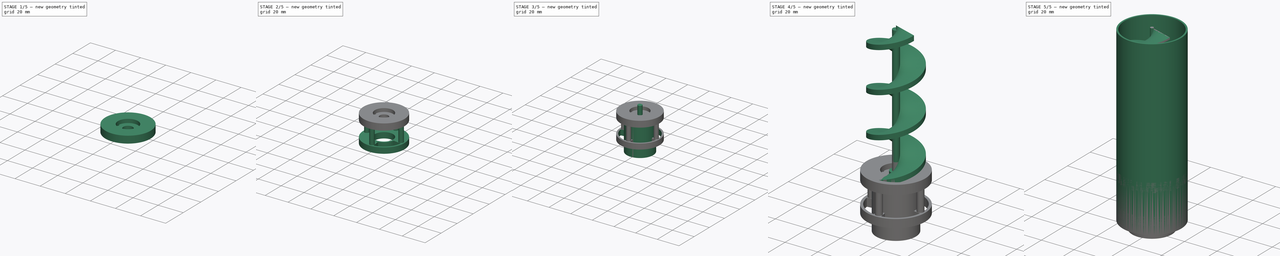
[diagram: build sequence overview — one tinted view per stage of 5, left to right]
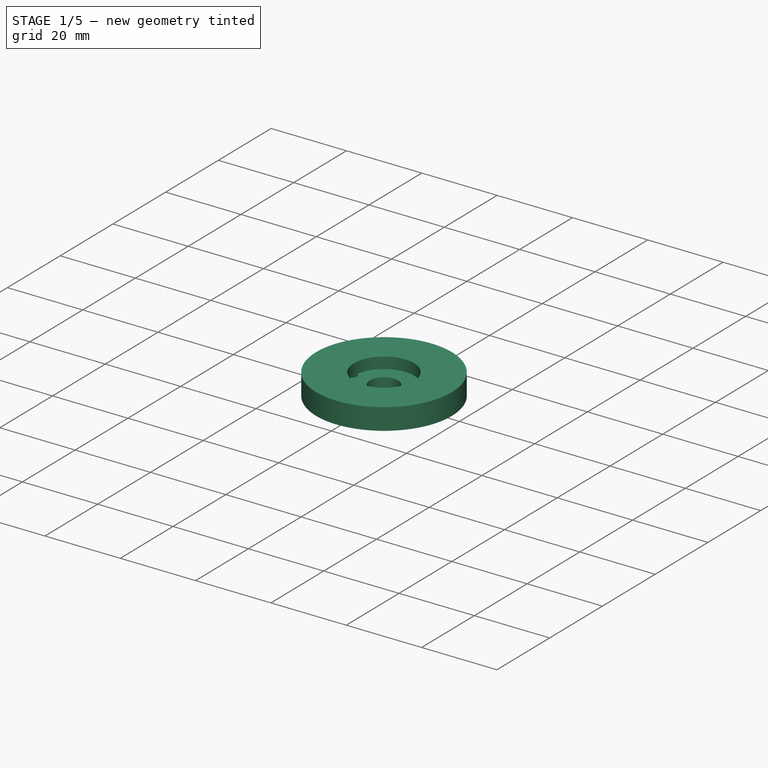
[diagram: stage 1 of 5 — iso view after this stage's code; geometry added in this stage tinted green]
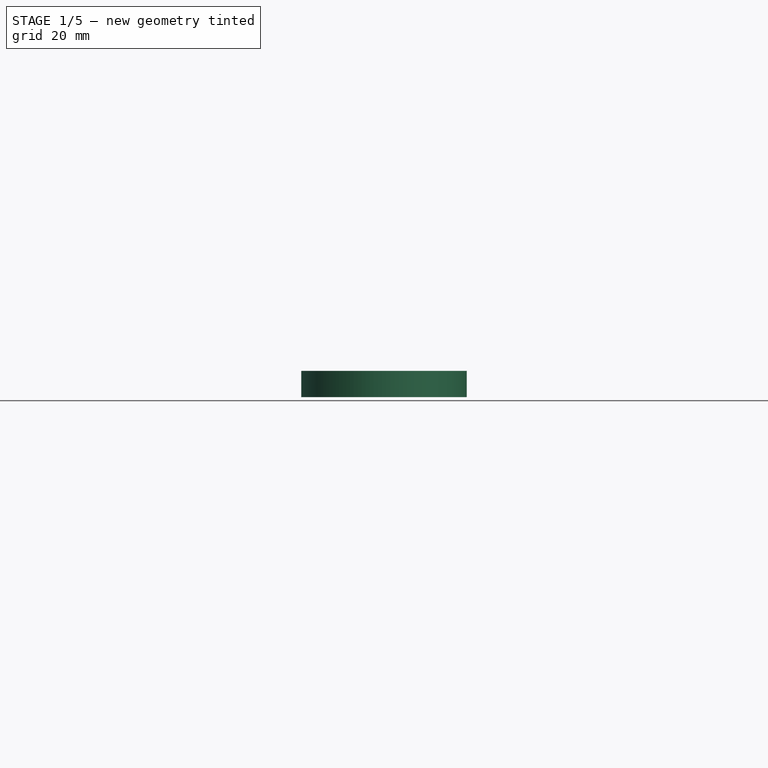
[diagram: stage 1 of 5 — front view after this stage's code; geometry added in this stage tinted green]
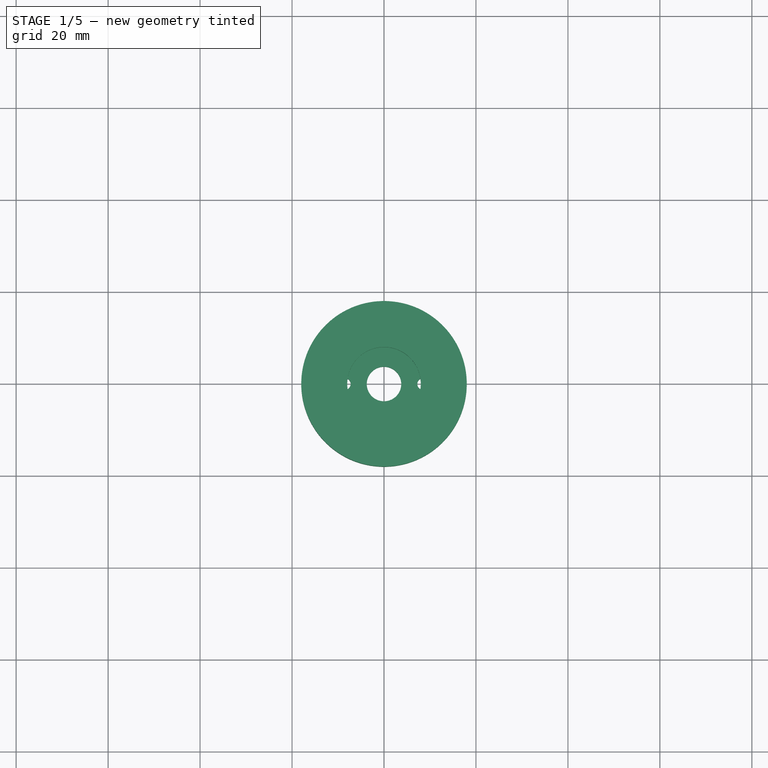
[diagram: stage 1 of 5 — top view after this stage's code; geometry added in this stage tinted green]
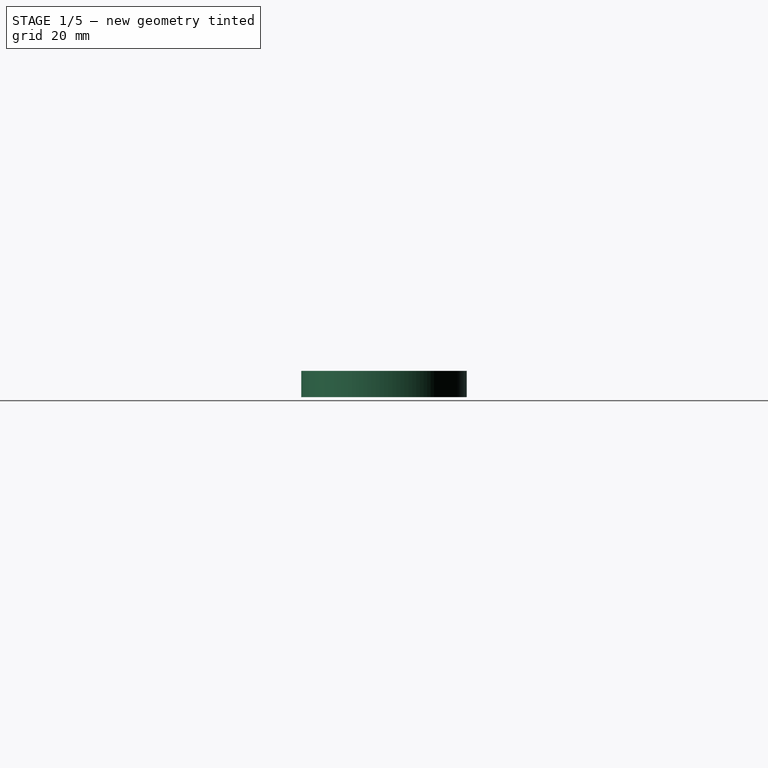
[diagram: stage 1 of 5 — right view after this stage's code; geometry added in this stage tinted green]
FCSTD DOCUMENT  (FreeCAD 0.19R24276 (Git))
Label: croquino
License: All rights reserved
LicenseURL: http://en.wikipedia.org/wiki/All_rights_reserved
objects: Sketcher::SketchObject×18, PartDesign::Pad×12, PartDesign::Body×5, PartDesign::Pocket×4, PartDesign::PolarPattern×3, PartDesign::AdditiveHelix×1, PartDesign::Hole×1
note: 62 computed .brp shape members not serialized (recipe doc carries the construction recipe); baked Part::Feature solids carry a one-line shape summary decoded from their .brp

FEATURE [PartDesign::Body] Body001  label="Cylindre"
  Group = -> [Sketch002,Pad002,Pad004]
  Origin = -> Origin001
  Tip = -> Pad004
FEATURE [Sketcher::SketchObject] Sketch004  label="ProfilSuportInterieur"
  AttachmentOffset = pos=(0,0,3) rot=(0,0,1;0rad)
  FullyConstrained = true
  MapMode = 5
  Placement = pos=(0,0,3) rot=(0,0,1;0rad)
  Support = -> [XY_Plane002]
  sketch-geometry (2):
    g0: Circle CenterX=0 CenterY=0 CenterZ=0 NormalX=0 NormalY=0 NormalZ=1 AngleXU=0 Radius=18
    g1: Circle CenterX=0 CenterY=0 CenterZ=0 NormalX=0 NormalY=0 NormalZ=1 AngleXU=0 Radius=8
  constraints (4):
    c: Coincident(g0,g-1)
    c: Diameter(g0) = 36  'DiamFixation'
    c: Coincident(g1,g0)
    c: Diameter(g1) = 16
FEATURE [PartDesign::Pad] Pad005  label="SupportInterieur"
  Direction = (1,1,1)
  Length = 5
  Length2 = 100
  Profile = -> Sketch004
  Reversed = true
  Type = 0
FEATURE [PartDesign::Body] Body003  label="CorpsMoteur"
  Group = -> [Sketch012,Sketch013,Pad010,Pad011,Sketch014,Pocket002,Sketch015,Pad012]
  Origin = -> Origin003
  Placement = pos=(0,0,-31) rot=(0,0,1;0rad)
  Tip = -> Pad012
FEATURE [Sketcher::SketchObject] Sketch016  label="ProfilCreuseSupportInterieur"
  FullyConstrained = false
  MapMode = 5
  Placement = pos=(0,0,-2) rot=(1,0,0;3.14159rad)
  Support = -> [Pad005]
  sketch-geometry (7):
    g0: Circle CenterX=0 CenterY=0 CenterZ=0 NormalX=0 NormalY=0 NormalZ=1 AngleXU=0 Radius=18
    g1: LineSegment StartX=0 StartY=0 StartZ=0 EndX=-2.52764 EndY=17.8216 EndZ=0
    g2: LineSegment StartX=0 StartY=0 StartZ=0 EndX=-17.7819 EndY=2.79331 EndZ=0
    g3: ArcOfCircle CenterX=0 CenterY=0 CenterZ=0 NormalX=0 NormalY=0 NormalZ=1 AngleXU=0 Radius=16.196 StartAngle=1.71169 EndAngle=2.98578
    g4: ArcOfCircle CenterX=0 CenterY=0 CenterZ=0 NormalX=0 NormalY=0 NormalZ=1 AngleXU=0 Radius=9.4761 StartAngle=1.71169 EndAngle=2.98578
    g5: LineSegment StartX=-2.27432 StartY=16.0355 StartZ=0 EndX=-1.33068 EndY=9.38221 EndZ=0
    g6: LineSegment StartX=-15.9998 StartY=2.51336 StartZ=0 EndX=-9.36131 EndY=1.47054 EndZ=0
  constraints (16):
    c: Coincident(g0,g-1)
    c: Diameter(g0) = 36
    c: Coincident(g1,g-1)
    c: PointOnObject(g1,g0)
    c: Coincident(g2,g-1)
    c: PointOnObject(g2,g0)
    c: Coincident(g3,g-1)
    c: PointOnObject(g3,g1)
    c: PointOnObject(g3,g2)
    c: Coincident(g4,g3)
    c: PointOnObject(g4,g1)
    c: PointOnObject(g4,g2)
    c: Coincident(g5,g3)
    c: Coincident(g5,g4)
    c: Coincident(g6,g4)
    c: Coincident(g6,g3)
FEATURE [PartDesign::Pocket] Pocket003  label="CreuseSupportInterieur"
  BaseFeature = -> Pad005
  Length = 3
  Length2 = 100
  Profile = -> Sketch016
  Type = 0
FEATURE [PartDesign::PolarPattern] PolarPattern002  label="RepeteCreuseSuppinterieur"
  Angle = 360
  Axis = -> Sketch016 [N_Axis]
  BaseFeature = -> Pocket003
  Occurrences = 4
  Originals = -> [Pocket003]
FEATURE [Sketcher::SketchObject] Sketch018  label="ProfilEmbaseVis"
  FullyConstrained = true
  MapMode = 5
  Placement = pos=(0,0,-16) rot=(0,0,1;0rad)
  Support = -> [Pad007]
  sketch-geometry (4):
    g0: Circle CenterX=0 CenterY=0 CenterZ=0 NormalX=0 NormalY=0 NormalZ=1 AngleXU=0 Radius=18
    g1: Circle CenterX=0 CenterY=0 CenterZ=0 NormalX=0 NormalY=0 NormalZ=1 AngleXU=0 Radius=8
    g2: Circle CenterX=0 CenterY=15 CenterZ=0 NormalX=0 NormalY=0 NormalZ=1 AngleXU=0 Radius=2
    g3: Circle CenterX=0 CenterY=-15 CenterZ=0 NormalX=0 NormalY=0 NormalZ=1 AngleXU=0 Radius=2
  constraints (9):
    c: Coincident(g0,g-1)
    c: Diameter(g0) = 36
    c: Coincident(g1,g0)
    c: Diameter(g1) = 16
    c: Diameter(g2) = 4
    c: PointOnObject(g2,g-2)
    c: DistanceY(g2) = 15
    c: Equal(g2,g3) = 4
    c: Symmetric(g3,g2,g-1)
FEATURE [PartDesign::Body] Body002  label="SupportVis"
  Group = -> [Sketch004,Pad005,Pocket003,PolarPattern002,Sketch005,Pad006,PolarPattern,Sketch006,Pad007,Sketch018,Pocket001,PolarPattern001,Sketch011,Sketch016,Sketch017,Hole]
  Origin = -> Origin002
  Placement = pos=(0,0,-6) rot=(0,0,1;0rad)
  Tip = -> Hole
FEATURE [Sketcher::SketchObject] Sketch019  label="ProfilSuppMoteur"
  FullyConstrained = true
  MapMode = 5
  Support = -> [XY_Plane004]
  sketch-geometry (8):
    g0: Circle CenterX=0 CenterY=0 CenterZ=0 NormalX=0 NormalY=0 NormalZ=1 AngleXU=0 Radius=18
    g1: Circle CenterX=0 CenterY=15 CenterZ=0 NormalX=0 NormalY=0 NormalZ=1 AngleXU=0 Radius=1.25
    g2: Circle CenterX=0 CenterY=-15 CenterZ=0 NormalX=0 NormalY=0 NormalZ=1 AngleXU=0 Radius=1.25
    g3: Circle CenterX=0 CenterY=0 CenterZ=0 NormalX=0 NormalY=0 NormalZ=1 AngleXU=0 Radius=3.75
    g4: Circle CenterX=-8.5 CenterY=0 CenterZ=0 NormalX=0 NormalY=0 NormalZ=1 AngleXU=0 Radius=1.25
    g5: Circle CenterX=8.5 CenterY=0 CenterZ=0 NormalX=0 NormalY=0 NormalZ=1 AngleXU=0 Radius=1.25
    g6: Circle CenterX=-15 CenterY=0 CenterZ=0 NormalX=0 NormalY=0 NormalZ=1 AngleXU=0 Radius=1.25
    g7: Circle CenterX=15 CenterY=0 CenterZ=0 NormalX=0 NormalY=0 NormalZ=1 AngleXU=0 Radius=1.25
  constraints (20):
    c: Coincident(g0,g-1)
    c: Diameter(g0) = 36
    c: Diameter(g1) = 2.5
    c: PointOnObject(g1,g-2)
    c: DistanceY(g1) = 15
    c: Equal(g1,g2) = 2
    c: Symmetric(g2,g1,g-1)
    c: Coincident(g3,g0)
    c: Diameter(g3) = 7.5
    c: PointOnObject(g4,g-1)
    c: Diameter(g4) = 2.5
    c: Equal(g4,g5) = 2
    c: Distance(g4,g5) = 17
    c: Symmetric(g5,g4,g-2)
    c: Equal(g1,g6) = 2
    c: PointOnObject(g6,g-1)
    c: DistanceX(g6) = -15
    c: PointOnObject(g7,g-1)
    c: DistanceX(g7) = 15
    c: Diameter(g7) = 2.5
FEATURE [PartDesign::Pad] Pad014  label="SupportMoteurVolume"
  Direction = (1,1,1)
  Length = 2.7
  Length2 = 100
  Profile = -> Sketch019
  Reversed = true
  Type = 0
FEATURE [PartDesign::Body] Body004  label="SupportMoteur"
  Group = -> [Sketch019,Pad014]
  Origin = -> Origin004
  Placement = pos=(0,0,-27) rot=(0,0,1;0rad)
  Tip = -> Pad014
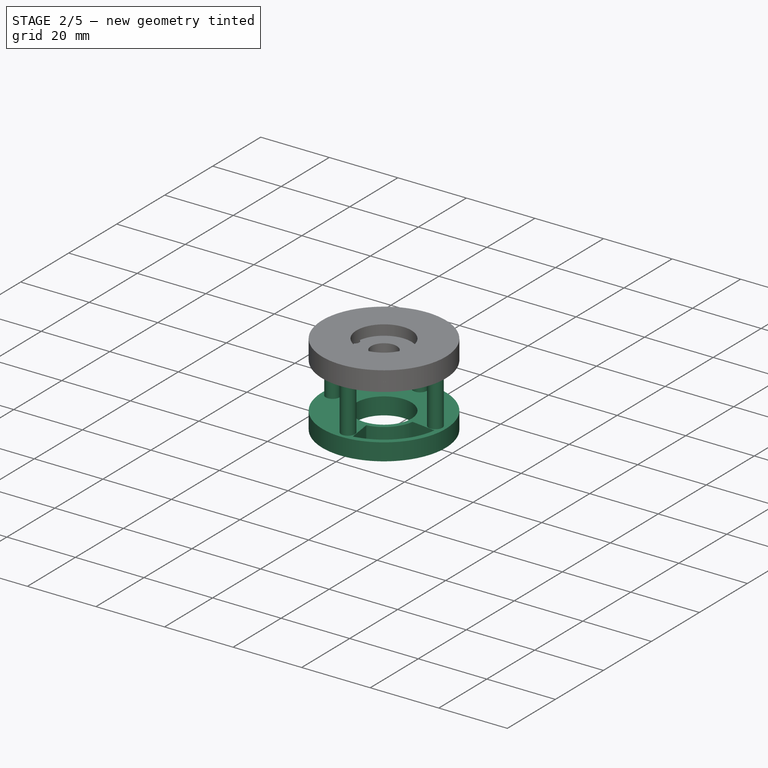
[diagram: stage 2 of 5 — iso view after this stage's code; geometry added in this stage tinted green]
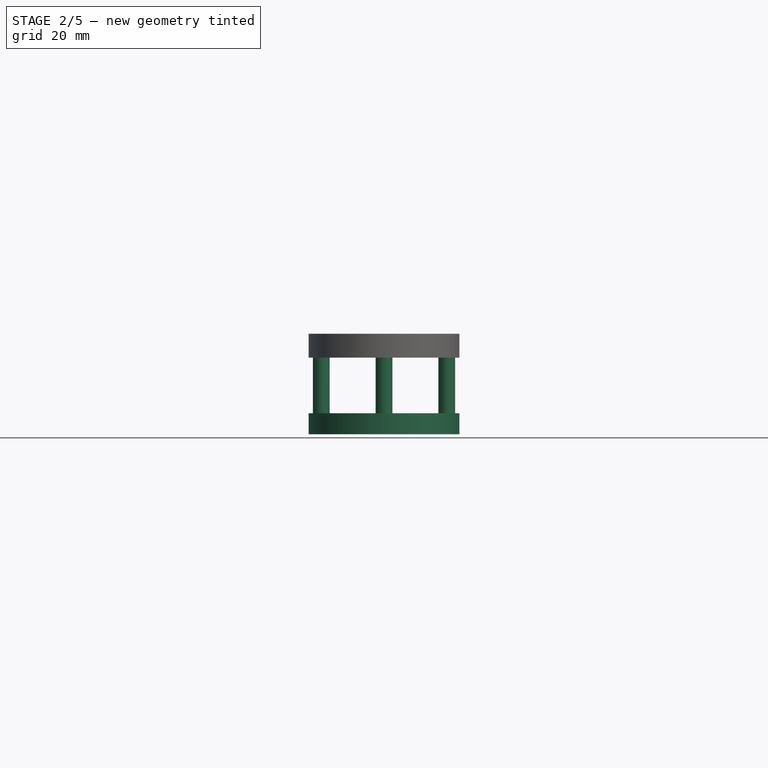
[diagram: stage 2 of 5 — front view after this stage's code; geometry added in this stage tinted green]
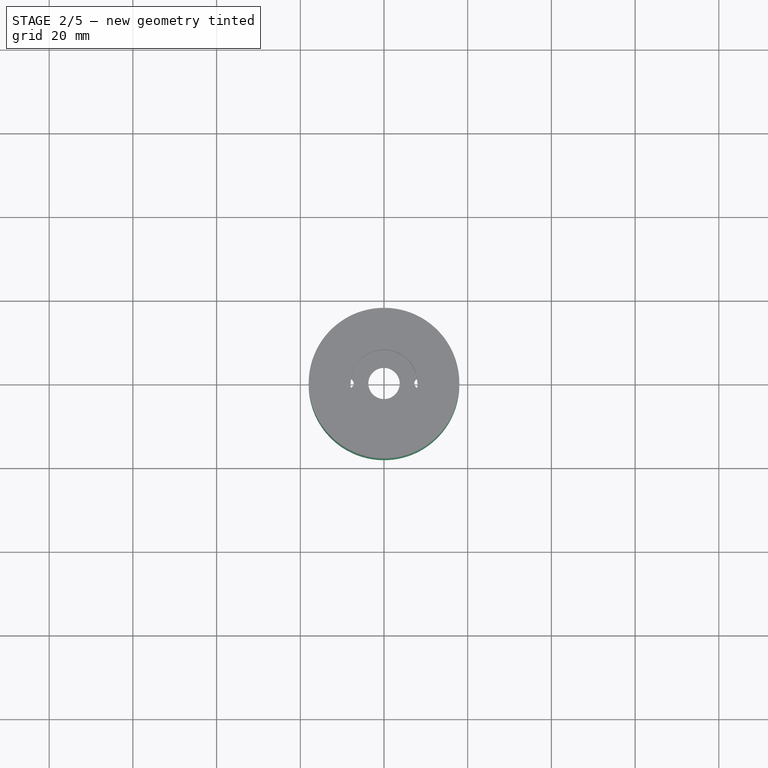
[diagram: stage 2 of 5 — top view after this stage's code; geometry added in this stage tinted green]
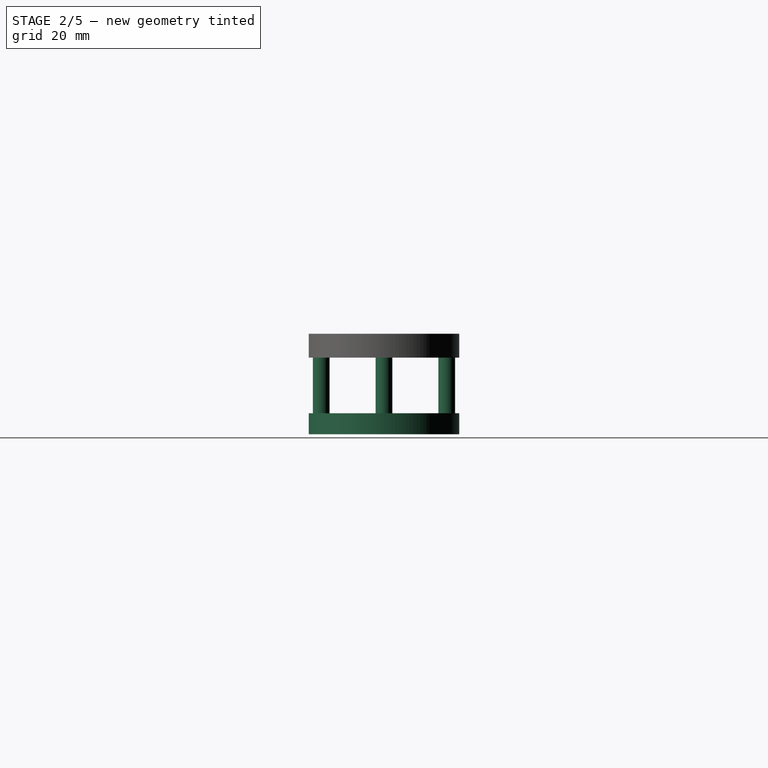
[diagram: stage 2 of 5 — right view after this stage's code; geometry added in this stage tinted green]
FEATURE [PartDesign::Pad] Pad006  label="TigeSupport"
  BaseFeature = -> PolarPattern002
  Direction = (1,1,1)
  Length = 14
  Length2 = 100
  Profile = -> Sketch005
  Reversed = true
  Type = 0
FEATURE [PartDesign::PolarPattern] PolarPattern  label="RepeteTige"
  Angle = 360
  Axis = -> Z_Axis002
  BaseFeature = -> Pad006
  Occurrences = 4
  Originals = -> [Pad006]
FEATURE [PartDesign::Pad] Pad007  label="SupportExterieur"
  BaseFeature = -> PolarPattern
  Direction = (1,1,1)
  Length = 5
  Length2 = 100
  Profile = -> Sketch006
  Reversed = true
  Type = 0
FEATURE [Sketcher::SketchObject] Sketch011  label="ProfilGainMatiereExterieur"
  FullyConstrained = false
  MapMode = 5
  Placement = pos=(0,0,-21) rot=(1,0,0;3.14159rad)
  Support = -> [Pad007]
  sketch-geometry (8):
    g0: Circle CenterX=0 CenterY=0 CenterZ=0 NormalX=0 NormalY=0 NormalZ=1 AngleXU=0 Radius=18
    g1: Circle CenterX=0 CenterY=0 CenterZ=0 NormalX=0 NormalY=0 NormalZ=1 AngleXU=0 Radius=8
    g2: LineSegment StartX=0 StartY=0 StartZ=0 EndX=17.8248 EndY=2.50512 EndZ=0
    g3: LineSegment StartX=0 StartY=0 StartZ=0 EndX=2.50512 EndY=17.8248 EndZ=0
    g4: ArcOfCircle CenterX=0 CenterY=0 CenterZ=0 NormalX=0 NormalY=0 NormalZ=1 AngleXU=0 Radius=9.32615 StartAngle=0.139626 EndAngle=1.43117
    g5: ArcOfCircle CenterX=0 CenterY=0 CenterZ=0 NormalX=0 NormalY=0 NormalZ=1 AngleXU=0 Radius=16.4521 StartAngle=0.139626 EndAngle=1.43117
    g6: LineSegment StartX=16.292 StartY=2.28969 StartZ=0 EndX=9.23539 EndY=1.29795 EndZ=0
    g7: LineSegment StartX=2.28969 StartY=16.292 StartZ=0 EndX=1.29795 EndY=9.23539 EndZ=0
  constraints (20):
    c: Coincident(g0,g-1)
    c: Diameter(g0) = 36
    c: Coincident(g1,g-1)
    c: Diameter(g1) = 16
    c: Coincident(g2,g-1)
    c: PointOnObject(g2,g0)
    c: Coincident(g3,g-1)
    c: PointOnObject(g3,g0)
    c: Coincident(g4,g-1)
    c: PointOnObject(g4,g2)
    c: PointOnObject(g4,g3)
    c: Coincident(g5,g4)
    c: PointOnObject(g5,g2)
    c: PointOnObject(g5,g3)
    c: Coincident(g6,g5)
    c: Coincident(g6,g4)
    c: Coincident(g7,g5)
    c: Coincident(g7,g4)
    c: Angle(g-1,g2) = 0.139626
    c: Angle(g3,g-2) = 0.139626
FEATURE [PartDesign::Pocket] Pocket001  label="GainMatiereSupportExterieur"
  BaseFeature = -> Pad007
  Length = 5
  Length2 = 100
  Profile = -> Sketch011
  Type = 0
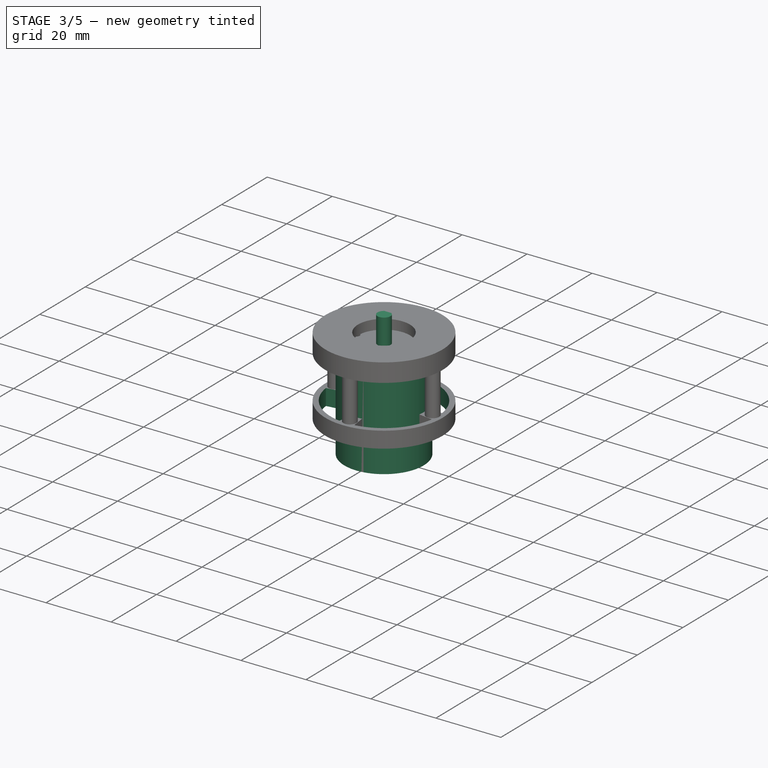
[diagram: stage 3 of 5 — iso view after this stage's code; geometry added in this stage tinted green]
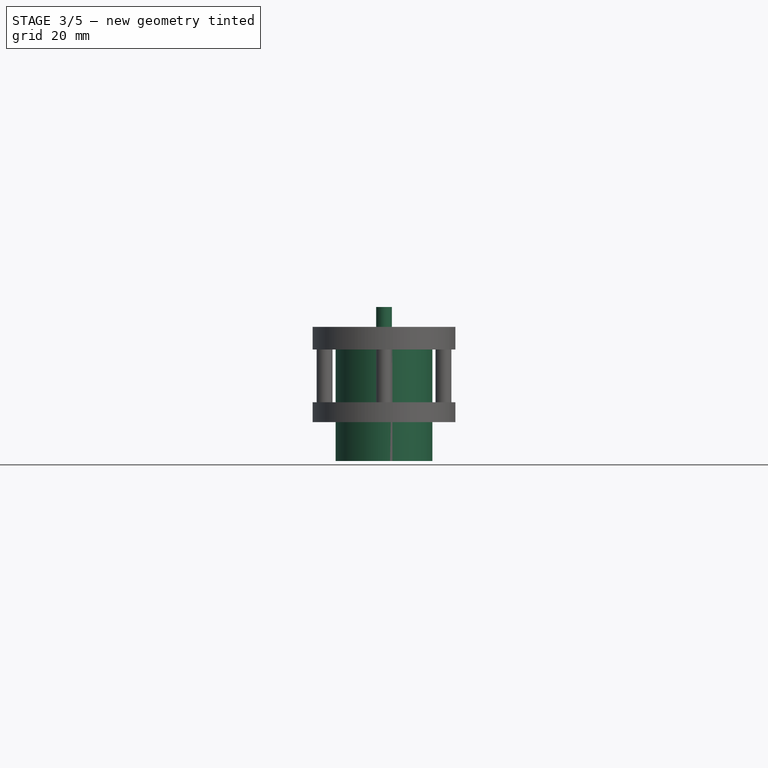
[diagram: stage 3 of 5 — front view after this stage's code; geometry added in this stage tinted green]
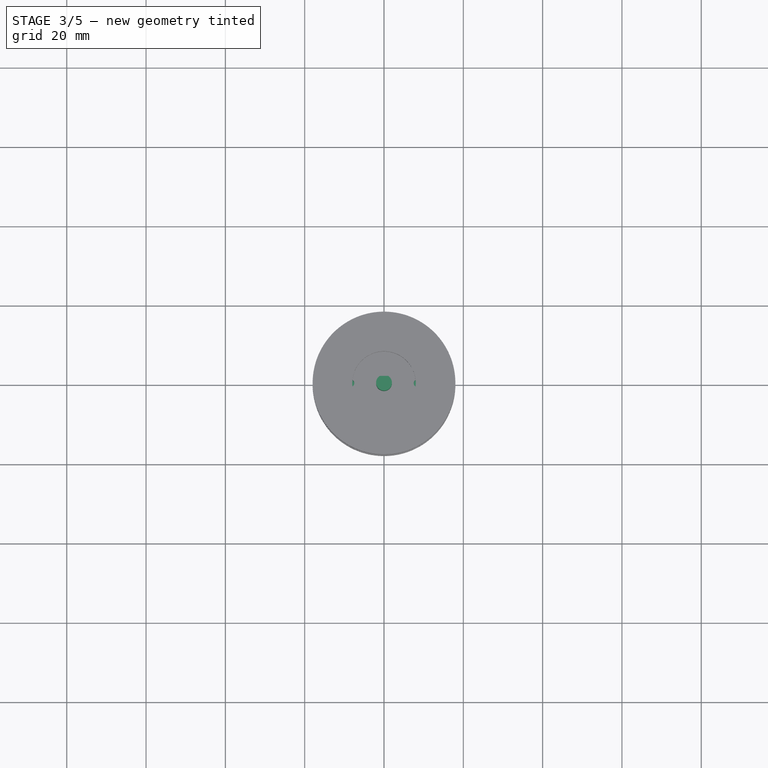
[diagram: stage 3 of 5 — top view after this stage's code; geometry added in this stage tinted green]
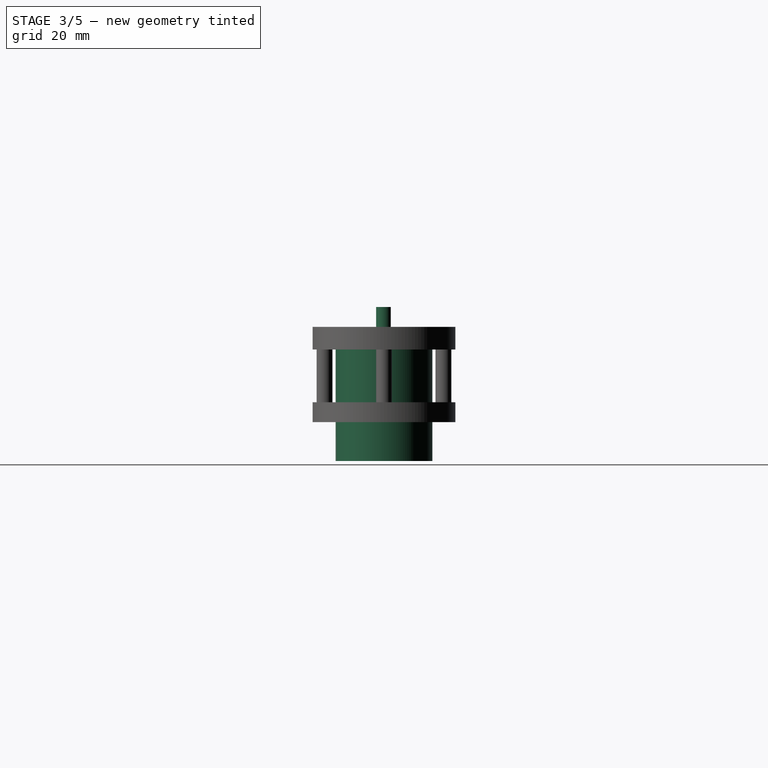
[diagram: stage 3 of 5 — right view after this stage's code; geometry added in this stage tinted green]
FEATURE [PartDesign::Body] Body  label="VisSansFin"
  Group = -> [Sketch,AdditiveHelix,Sketch001,Pad,Pad009,Sketch009,Sketch003,Pad003,Sketch010,Pocket]
  Origin = -> Origin
  Tip = -> Pocket
FEATURE [Sketcher::SketchObject] Sketch012  label="ProfilCorpsMoteur"
  FullyConstrained = true
  MapMode = 5
  Support = -> [XY_Plane003]
  sketch-geometry (1):
    g0: Circle CenterX=0 CenterY=0 CenterZ=0 NormalX=0 NormalY=0 NormalZ=1 AngleXU=0 Radius=12.2
  constraints (2):
    c: Coincident(g0,g-1)
    c: Diameter(g0) = 24.4
FEATURE [Sketcher::SketchObject] Sketch013  label="AxeMoteur"
  FullyConstrained = false
  MapMode = 5
  Support = -> [XY_Plane003]
  sketch-geometry (4):
    g0: Circle CenterX=0 CenterY=0 CenterZ=0 NormalX=0 NormalY=0 NormalZ=1 AngleXU=0 Radius=2
    g1: LineSegment StartX=-1.05357 StartY=1.7 StartZ=0 EndX=1.05357 EndY=1.7 EndZ=0
    g2: ArcOfCircle CenterX=0 CenterY=0 CenterZ=0 NormalX=0 NormalY=0 NormalZ=1 AngleXU=0 Radius=2 StartAngle=2.12561 EndAngle=4.71239
    g3: ArcOfCircle CenterX=0 CenterY=0 CenterZ=0 NormalX=0 NormalY=0 NormalZ=1 AngleXU=0 Radius=2 StartAngle=4.71239 EndAngle=7.29917
  constraints (10):
    c: Coincident(g0,g-1)
    c: Diameter(g0) = 4
    c: PointOnObject(g1,g0)
    c: Horizontal(g1)
    c: Coincident(g2,g-1)
    c: Coincident(g2,g1)
    c: PointOnObject(g2,g-2)
    c: Coincident(g3,g2)
    c: Coincident(g3,g2)
    c: Coincident(g3,g1)
FEATURE [PartDesign::Pad] Pad010  label="Corps"
  Direction = (1,1,1)
  Length = 30.8
  Length2 = 100
  Profile = -> Sketch012
  Reversed = true
  Type = 0
FEATURE [PartDesign::Pad] Pad011  label="Axe"
  BaseFeature = -> Pad010
  Direction = (1,1,1)
  Length = 8
  Length2 = 100
  Profile = -> Sketch013
  Type = 0
FEATURE [Sketcher::SketchObject] Sketch014  label="ProfilTrousFixation"
  FullyConstrained = false
  MapMode = 5
  Support = -> [Pad011]
  sketch-geometry (4):
    g0: LineSegment StartX=-8.5 StartY=0 StartZ=0 EndX=8.5 EndY=0 EndZ=0
    g1: Circle CenterX=-0.289267 CenterY=0 CenterZ=0 NormalX=0 NormalY=0 NormalZ=1 AngleXU=0 Radius=12.2
    g2: Circle CenterX=-8.5 CenterY=0 CenterZ=0 NormalX=0 NormalY=0 NormalZ=1 AngleXU=0 Radius=1
    g3: Circle CenterX=8.5 CenterY=0 CenterZ=0 NormalX=0 NormalY=0 NormalZ=1 AngleXU=0 Radius=1
  constraints (9):
    c: PointOnObject(g0,g-1)
    c: Distance(g0) = 17
    c: PointOnObject(g1,g0)
    c: Diameter(g1) = 24.4
    c: Symmetric(g0,g0,g-2)
    c: Coincident(g2,g0)
    c: Diameter(g2) = 2
    c: Equal(g2,g3) = 2
    c: Coincident(g3,g0)
FEATURE [PartDesign::Pocket] Pocket002  label="TrousFixationMoteur"
  BaseFeature = -> Pad011
  Length = 5
  Length2 = 100
  Profile = -> Sketch014
  Type = 0
FEATURE [PartDesign::PolarPattern] PolarPattern001  label="RepeteGainMatiereExterieur"
  Angle = 360
  Axis = -> Z_Axis002
  BaseFeature = -> Pocket001
  Occurrences = 4
  Originals = -> [Pocket001]
FEATURE [Sketcher::SketchObject] Sketch017  label="ProfilVisFixationSupportMoteur"
  FullyConstrained = true
  MapMode = 5
  Placement = pos=(0,0,-21) rot=(1,0,0;3.14159rad)
  Support = -> [PolarPattern001]
  sketch-geometry (4):
    g0: Circle CenterX=0 CenterY=15 CenterZ=0 NormalX=0 NormalY=0 NormalZ=1 AngleXU=0 Radius=1
    g1: Circle CenterX=0 CenterY=-15 CenterZ=0 NormalX=0 NormalY=0 NormalZ=1 AngleXU=0 Radius=1
    g2: Circle CenterX=-15 CenterY=0 CenterZ=0 NormalX=0 NormalY=0 NormalZ=1 AngleXU=0 Radius=1
    g3: Circle CenterX=15 CenterY=0 CenterZ=0 NormalX=0 NormalY=0 NormalZ=1 AngleXU=0 Radius=1
  constraints (12):
    c: PointOnObject(g0,g-2)
    c: DistanceY(g0) = 15
    c: Diameter(g0) = 2
    c: Equal(g0,g1) = 2
    c: PointOnObject(g1,g-2)
    c: DistanceY(g1) = -15
    c: PointOnObject(g2,g-1)
    c: Diameter(g2) = 2
    c: DistanceX(g2) = -15
    c: Equal(g2,g3) = 2
    c: PointOnObject(g3,g-1)
    c: DistanceX(g3) = 15
FEATURE [PartDesign::Hole] Hole  label="TrouFixationSupportMoteur"
  BaseFeature = -> PolarPattern001
  Depth = 9
  DepthType = 0
  Diameter = 1.6
  DrillForDepth = false
  DrillPoint = 1
  DrillPointAngle = 118
  HoleCutCountersinkAngle = 90
  HoleCutCustomValues = false
  HoleCutDepth = 0
  HoleCutDiameter = 6.1
  HoleCutType = 0
  ModelActualThread = false
  Profile = -> Sketch017
  Tapered = false
  TaperedAngle = 90
  ThreadAngle = 60
  ThreadClass = 0
  ThreadCutOffInner = 0.0433013
  ThreadCutOffOuter = 0.0866025
  ThreadDirection = 0
  ThreadFit = 1
  ThreadPitch = 0.4
  ThreadSize = 6
  ThreadType = 1
  Threaded = true
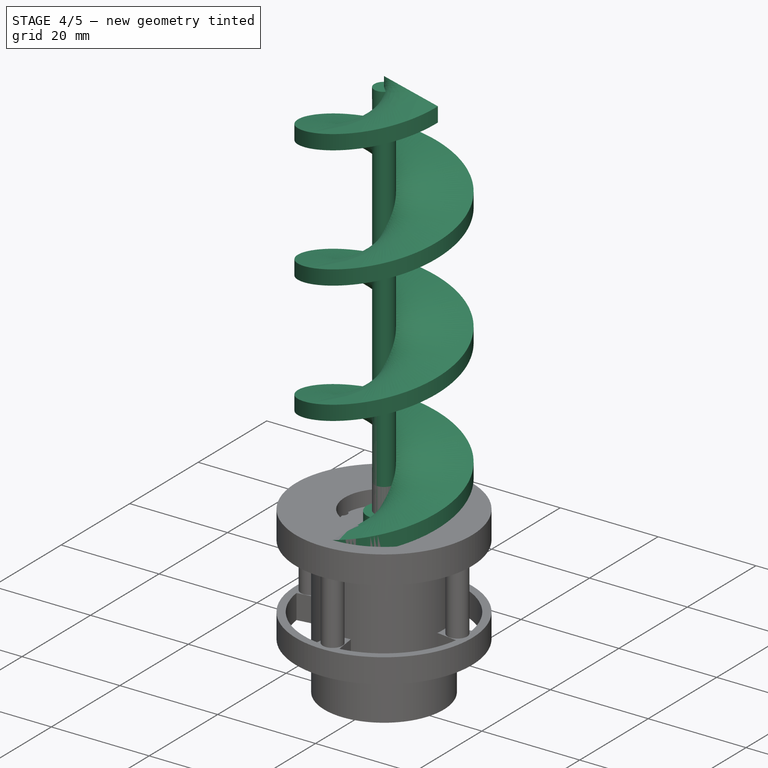
[diagram: stage 4 of 5 — iso view after this stage's code; geometry added in this stage tinted green]
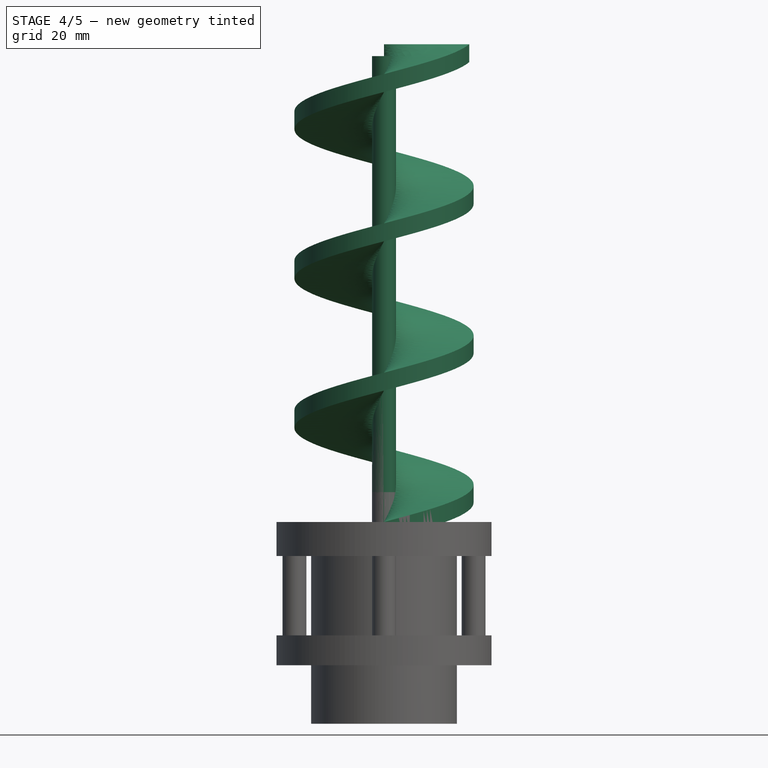
[diagram: stage 4 of 5 — front view after this stage's code; geometry added in this stage tinted green]
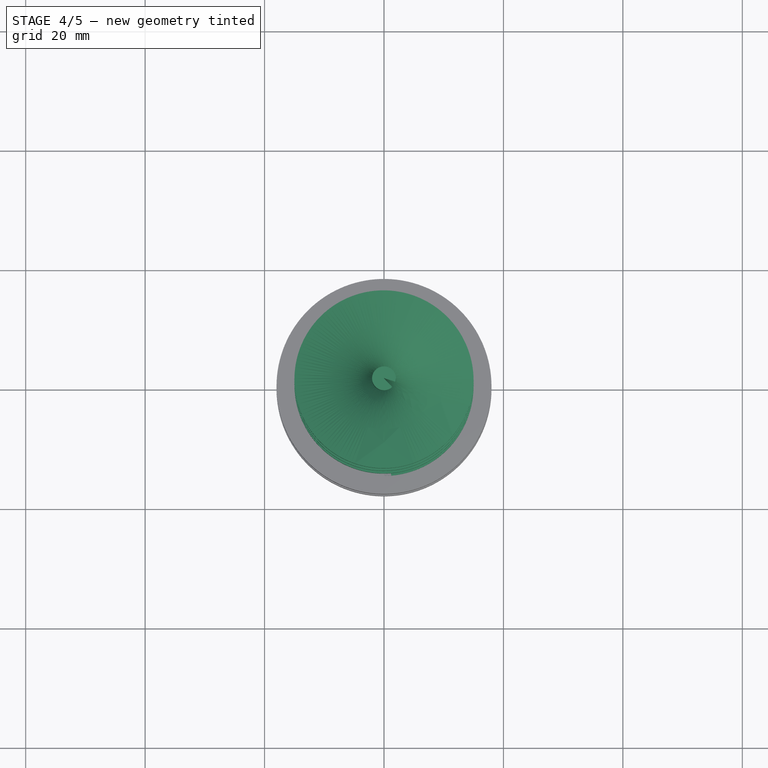
[diagram: stage 4 of 5 — top view after this stage's code; geometry added in this stage tinted green]
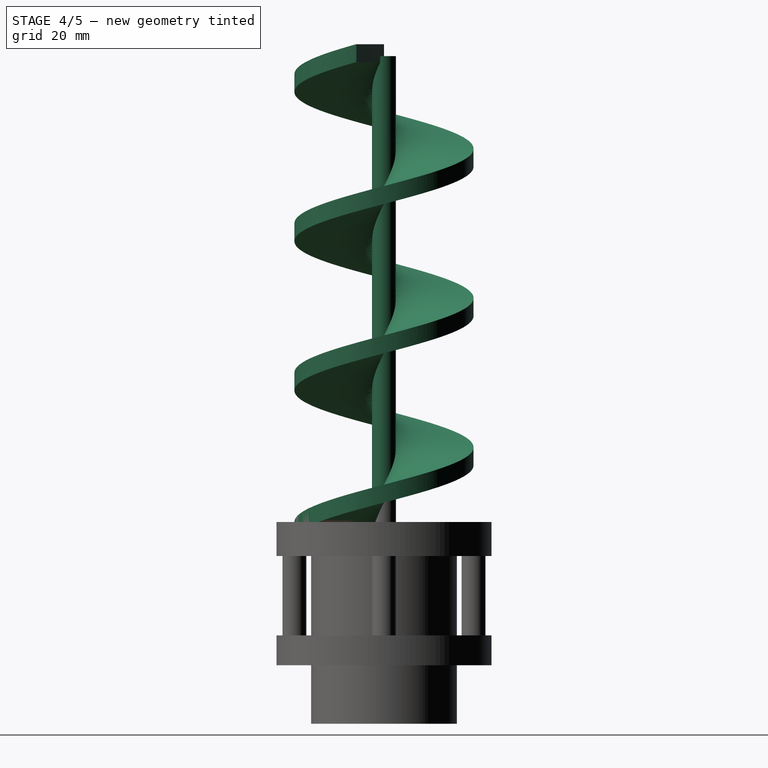
[diagram: stage 4 of 5 — right view after this stage's code; geometry added in this stage tinted green]
FEATURE [Sketcher::SketchObject] Sketch  label="ProfilVisSS"
  FullyConstrained = true
  MapMode = 5
  Placement = pos=(0,0,0) rot=(0.57735,0.57735,0.57735;2.0944rad)
  Support = -> [YZ_Plane]
  sketch-geometry (4):
    g0: LineSegment StartX=0 StartY=0 StartZ=0 EndX=-15 EndY=0 EndZ=0
    g1: LineSegment StartX=-15 StartY=0 StartZ=0 EndX=-15 EndY=3 EndZ=0
    g2: LineSegment StartX=-15 StartY=3 StartZ=0 EndX=0 EndY=3 EndZ=0
    g3: LineSegment StartX=0 StartY=3 StartZ=0 EndX=0 EndY=0 EndZ=0
  constraints (11):
    c: Coincident(g0,g1)
    c: Coincident(g1,g2)
    c: Coincident(g2,g3)
    c: Coincident(g3,g0)
    c: Horizontal(g0)
    c: Horizontal(g2)
    c: Vertical(g1)
    c: Vertical(g3)
    c: Coincident(g0,g-1)
    c: Distance(g2) = 15
    c: Distance(g1) = 3
FEATURE [PartDesign::AdditiveHelix] AdditiveHelix
  Angle = 0
  Axis = (-2e-16,3e-16,1)
  Base = (0,0,0)
  HasBeenEdited = true
  Height = 80
  LeftHanded = false
  Mode = 0
  Outside = false
  Pitch = 25
  Placement = pos=(0,0,0) rot=(0.57735,0.57735,0.57735;2.0944rad)
  Profile = -> Sketch
  ReferenceAxis = -> Sketch [V_Axis]
  Turns = 3
FEATURE [Sketcher::SketchObject] Sketch001  label="ProfilTige"
  FullyConstrained = true
  MapMode = 5
  Support = -> [XY_Plane]
  sketch-geometry (2):
    g0: Circle CenterX=0 CenterY=0 CenterZ=0 NormalX=0 NormalY=0 NormalZ=1 AngleXU=0 Radius=2
    g1: Circle CenterX=0 CenterY=0 CenterZ=0 NormalX=0 NormalY=0 NormalZ=1 AngleXU=0 Radius=15
  constraints (4):
    c: Coincident(g0,g-1)
    c: Radius(g0) = 2  'RayonTige'
    c: Coincident(g1,g0)
    c: Radius(g1) = 15
FEATURE [PartDesign::Pad] Pad  label="TigeInterieur"
  BaseFeature = -> AdditiveHelix
  Direction = (1,1,1)
  Length = 81
  Length2 = 100
  Placement = pos=(0,0,0) rot=(0.57735,0.57735,0.57735;2.0944rad)
  Profile = -> Sketch001
  Type = 0
FEATURE [Sketcher::SketchObject] Sketch005  label="ProfilTigeSupport"
  AttachmentOffset = pos=(0,0,-5) rot=(0,0,1;0rad)
  FullyConstrained = true
  MapMode = 5
  Placement = pos=(0,0,-2) rot=(0,0,1;0rad)
  Support = -> [Pad005]
  sketch-geometry (3):
    g0: Circle CenterX=0 CenterY=0 CenterZ=0 NormalX=0 NormalY=0 NormalZ=1 AngleXU=0 Radius=18
    g1: Circle CenterX=0 CenterY=0 CenterZ=0 NormalX=0 NormalY=0 NormalZ=1 AngleXU=0 Radius=8
    g2: Circle CenterX=0 CenterY=15 CenterZ=0 NormalX=0 NormalY=0 NormalZ=1 AngleXU=0 Radius=2
  constraints (7):
    c: Coincident(g0,g-1)
    c: Diameter(g0) = 36
    c: Coincident(g1,g-1)
    c: Diameter(g1) = 16
    c: PointOnObject(g2,g-2)
    c: Diameter(g2) = 4
    c: DistanceY(g2) = 15
FEATURE [Sketcher::SketchObject] Sketch006  label="ProfilSupportExterieur"
  AttachmentOffset = pos=(0,0,-16) rot=(0,0,1;0rad)
  FullyConstrained = true
  MapMode = 5
  Placement = pos=(0,0,-16) rot=(0,0,1;0rad)
  Support = -> [XY_Plane002]
  sketch-geometry (2):
    g0: Circle CenterX=0 CenterY=0 CenterZ=0 NormalX=0 NormalY=0 NormalZ=1 AngleXU=0 Radius=8
    g1: Circle CenterX=0 CenterY=0 CenterZ=0 NormalX=0 NormalY=0 NormalZ=1 AngleXU=0 Radius=18
  constraints (4):
    c: Coincident(g0,g-1)
    c: Diameter(g0) = 16
    c: Coincident(g1,g0)
    c: Diameter(g1) = 36
FEATURE [Sketcher::SketchObject] Sketch009  label="ProfilAxeVis"
  FullyConstrained = true
  MapMode = 5
  Support = -> [XY_Plane]
  sketch-geometry (1):
    g0: Circle CenterX=0 CenterY=0 CenterZ=0 NormalX=0 NormalY=0 NormalZ=1 AngleXU=0 Radius=2.35
  constraints (2):
    c: Coincident(g0,g-1)
    c: Diameter(g0) = 4.7
FEATURE [PartDesign::Pad] Pad009  label="TigeMoteur"
  BaseFeature = -> Pad
  Direction = (1,1,1)
  Length = 28
  Length2 = 100
  Placement = pos=(0,0,0) rot=(0.57735,0.57735,0.57735;2.0944rad)
  Profile = -> Sketch009
  Reversed = true
  Type = 0
FEATURE [Sketcher::SketchObject] Sketch015  label="ProfilAnneau"
  FullyConstrained = true
  MapMode = 5
  Support = -> [Pocket002]
  sketch-geometry (2):
    g0: Circle CenterX=0 CenterY=0 CenterZ=0 NormalX=0 NormalY=0 NormalZ=1 AngleXU=0 Radius=2
    g1: Circle CenterX=0 CenterY=0 CenterZ=0 NormalX=0 NormalY=0 NormalZ=1 AngleXU=0 Radius=3.5
  constraints (4):
    c: Coincident(g0,g-1)
    c: Diameter(g0) = 4
    c: Coincident(g1,g0)
    c: Diameter(g1) = 7
FEATURE [PartDesign::Pad] Pad012  label="AnneauCorpsMoteur"
  BaseFeature = -> Pocket002
  Direction = (1,1,1)
  Length = 2.7
  Length2 = 100
  Profile = -> Sketch015
  Type = 0
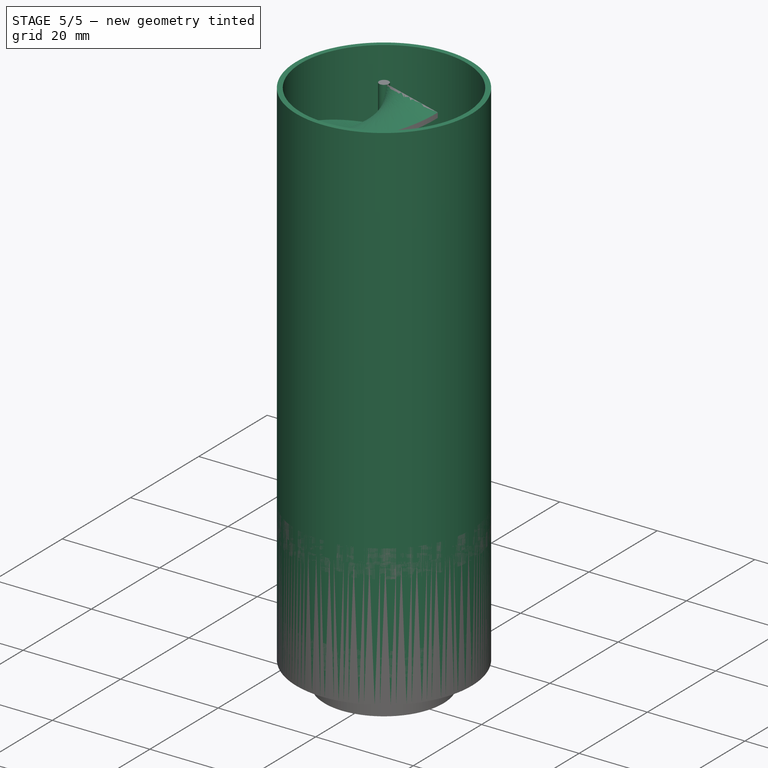
[diagram: stage 5 of 5 — iso view after this stage's code; geometry added in this stage tinted green]
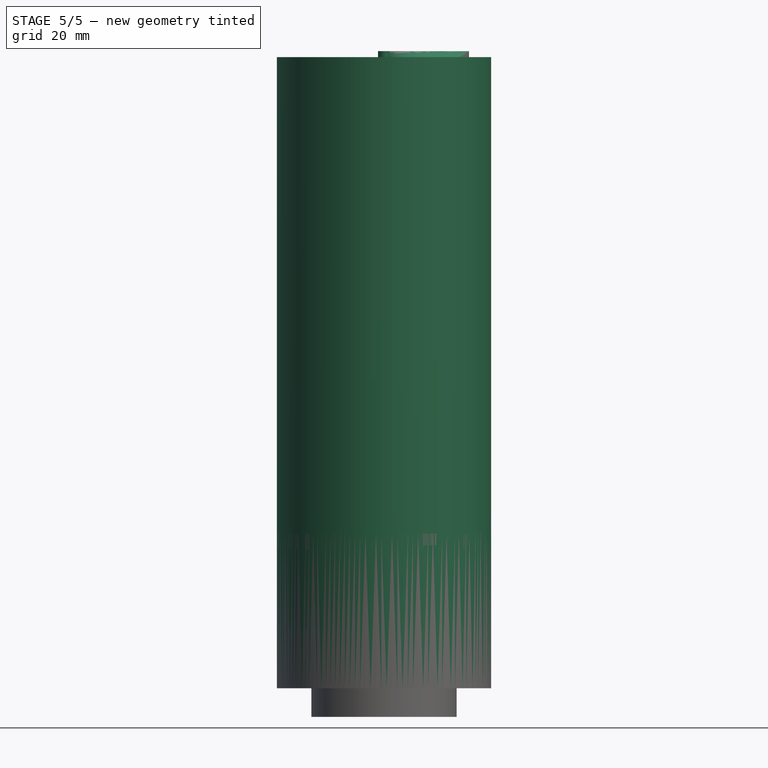
[diagram: stage 5 of 5 — front view after this stage's code; geometry added in this stage tinted green]
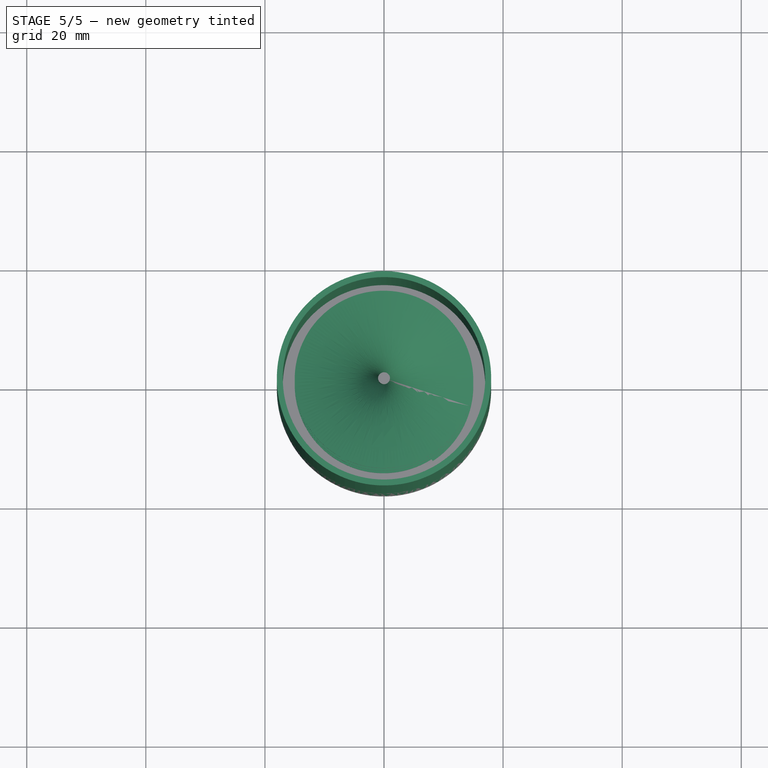
[diagram: stage 5 of 5 — top view after this stage's code; geometry added in this stage tinted green]
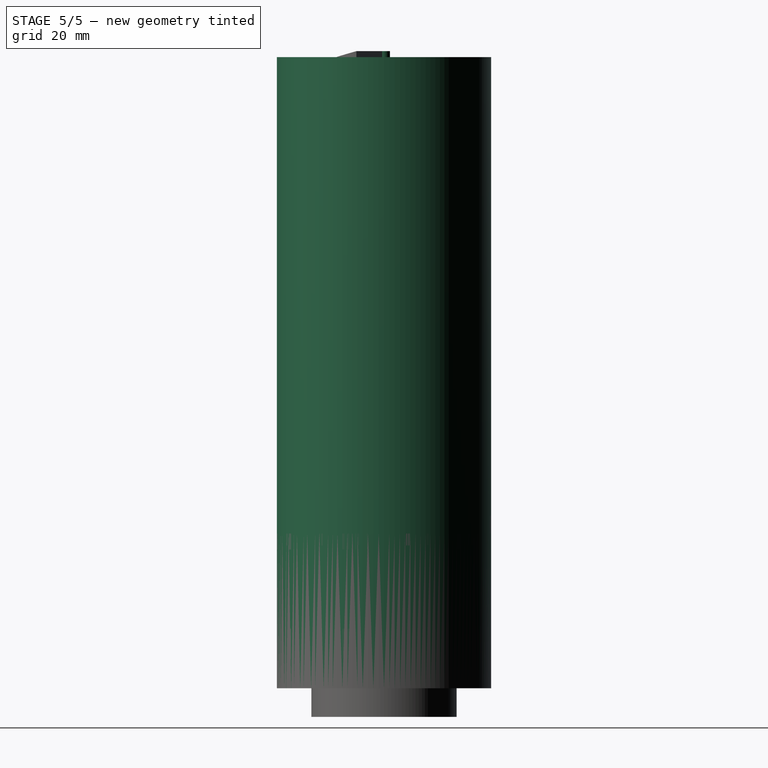
[diagram: stage 5 of 5 — right view after this stage's code; geometry added in this stage tinted green]
FEATURE [Sketcher::SketchObject] Sketch002  label="Profil cylindre"
  FullyConstrained = true
  MapMode = 5
  Support = -> [XY_Plane001]
  sketch-geometry (2):
    g0: Circle CenterX=0 CenterY=0 CenterZ=0 NormalX=0 NormalY=0 NormalZ=1 AngleXU=0 Radius=17
    g1: Circle CenterX=0 CenterY=0 CenterZ=0 NormalX=0 NormalY=0 NormalZ=1 AngleXU=0 Radius=18
  constraints (4):
    c: Coincident(g0,g-1)
    c: Radius(g0) = 17
    c: Coincident(g1,g0)
    c: Radius(g1) = 18
FEATURE [PartDesign::Pad] Pad002  label="CylindreHauteur"
  Direction = (1,1,1)
  Length = 80
  Length2 = 100
  Profile = -> Sketch002
  Type = 0
FEATURE [Sketcher::SketchObject] Sketch003  label="ProfilArret"
  FullyConstrained = true
  MapMode = 5
  Support = -> [XY_Plane]
  sketch-geometry (2):
    g0: Circle CenterX=0 CenterY=0 CenterZ=0 NormalX=0 NormalY=0 NormalZ=1 AngleXU=0 Radius=1
    g1: Circle CenterX=0 CenterY=0 CenterZ=0 NormalX=0 NormalY=0 NormalZ=1 AngleXU=0 Radius=17
  constraints (4):
    c: Coincident(g0,g-1)
    c: Coincident(g1,g0)
    c: Radius(g0) = 1
    c: Radius(g1) = 17
FEATURE [PartDesign::Pad] Pad004  label="CylindreMoteur"
  BaseFeature = -> Pad002
  Direction = (1,1,1)
  Length = 26
  Length2 = 100
  Profile = -> Sketch002
  Reversed = true
  Type = 0
FEATURE [PartDesign::Pad] Pad003  label="Arret"
  BaseFeature = -> Pad009
  Direction = (1,1,1)
  Length = 2
  Length2 = 100
  Placement = pos=(0,0,0) rot=(0.57735,0.57735,0.57735;2.0944rad)
  Profile = -> Sketch003
  Reversed = true
  Type = 0
FEATURE [Sketcher::SketchObject] Sketch010  label="ProfilEncocheMoteur"
  FullyConstrained = false
  MapMode = 5
  Placement = pos=(0,-1.6e-15,-28) rot=(0.707107,0.707107,0;3.14159rad)
  Support = -> [Pad003]
  sketch-geometry (4):
    g0: Circle CenterX=0 CenterY=0 CenterZ=0 NormalX=0 NormalY=0 NormalZ=1 AngleXU=0 Radius=1.9
    g1: LineSegment StartX=-1.16619 StartY=1.5 StartZ=0 EndX=1.16619 EndY=1.5 EndZ=0
    g2: ArcOfCircle CenterX=-2e-16 CenterY=0 CenterZ=0 NormalX=0 NormalY=0 NormalZ=1 AngleXU=0 Radius=1.9 StartAngle=2.23164 EndAngle=4.71489
    g3: ArcOfCircle CenterX=-2e-16 CenterY=0 CenterZ=0 NormalX=0 NormalY=0 NormalZ=1 AngleXU=0 Radius=1.9 StartAngle=4.71489 EndAngle=7.19314
  constraints (11):
    c: Coincident(g0,g-1)
    c: Diameter(g0) = 3.8
    c: PointOnObject(g1,g0)
    c: PointOnObject(g1,g0)
    c: Horizontal(g1)
    c: DistanceY(g1) = 1.5
    c: PointOnObject(g2,g-1)
    c: Coincident(g2,g1)
    c: Coincident(g3,g2)
    c: Coincident(g3,g2)
    c: Coincident(g3,g1)
FEATURE [PartDesign::Pocket] Pocket  label="EncocheMoteur"
  BaseFeature = -> Pad003
  Length = 18
  Length2 = 100
  Placement = pos=(0,0,0) rot=(0.57735,0.57735,0.57735;2.0944rad)
  Profile = -> Sketch010
  Type = 0
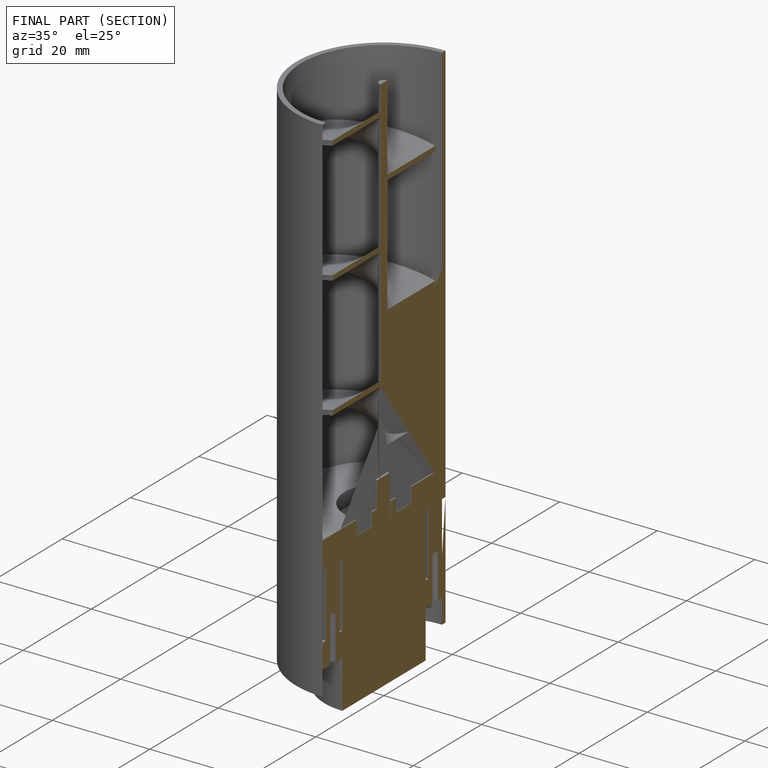
[diagram: finished part — half-section view (interior)]
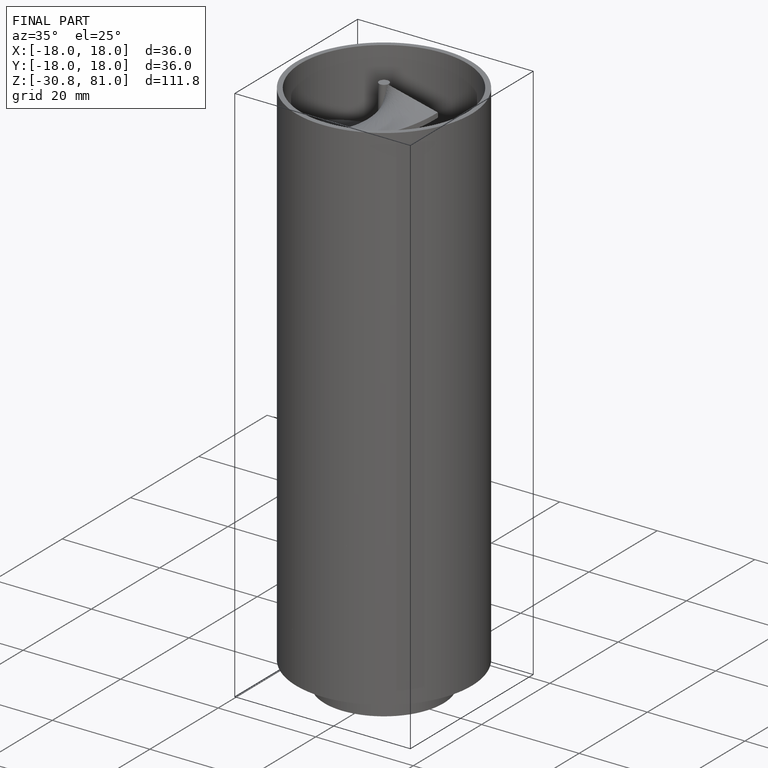
[diagram: finished part — iso view with bounding-box wireframe]
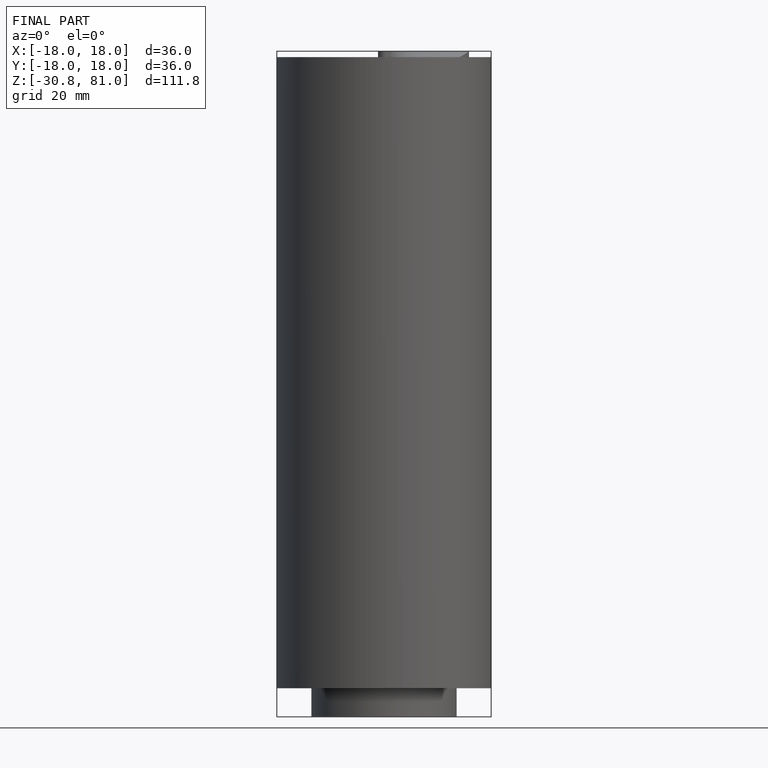
[diagram: finished part — front view with bounding-box wireframe]
